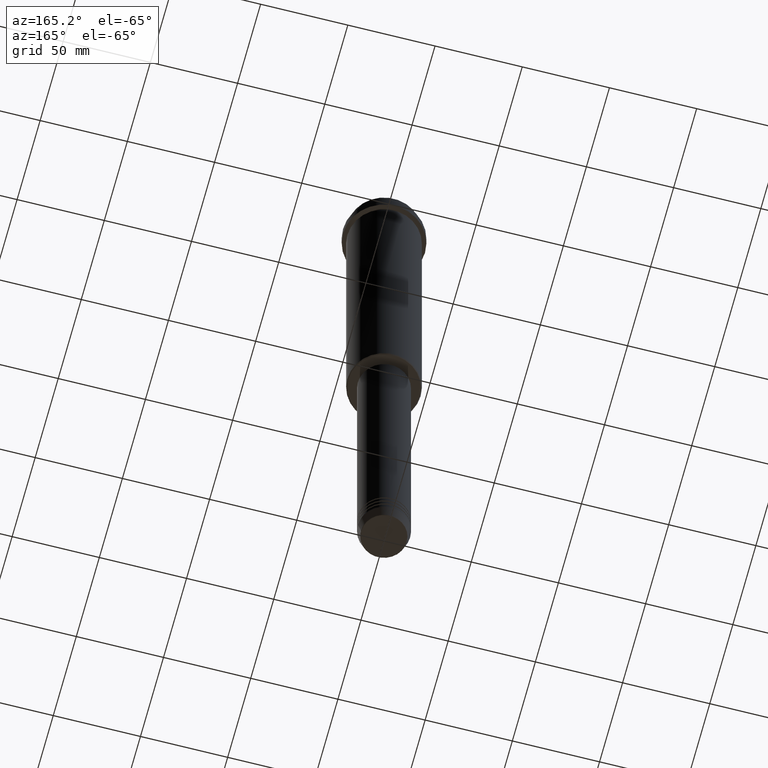
[diagram: clean part render]
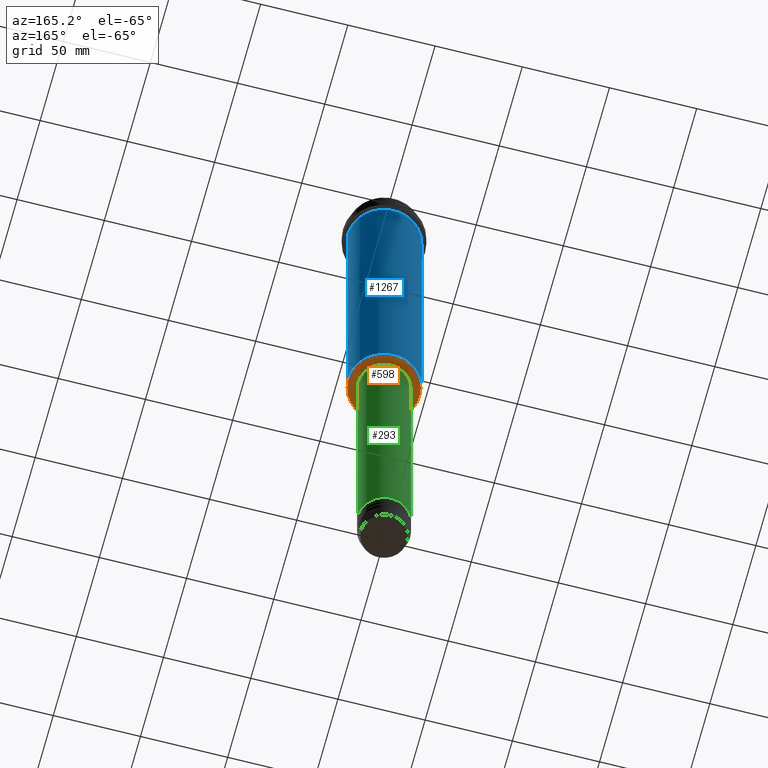
[diagram: same view with three faces highlighted in distinct colors, each labeled with its STEP entity id]
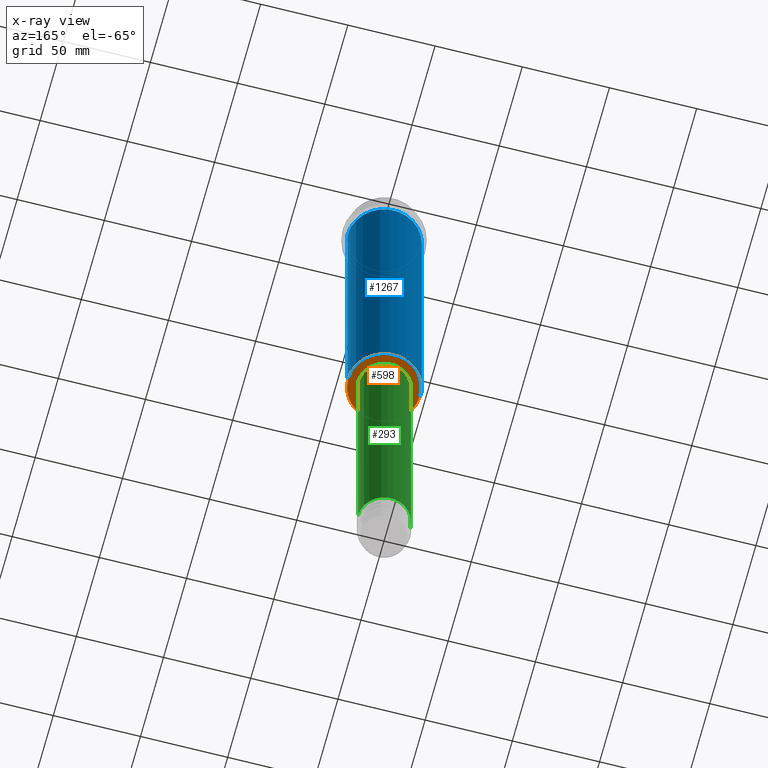
[diagram: x-ray of the same camera — body ghosted, the three highlighted faces saturated]
A machine part, auxiliary view with three faces highlighted in distinct colors.
The next image is the same camera in x-ray (body ghosted, the three faces saturated) — at least one of them is partly hidden behind the body in this view.
Their STEP definitions:

[orange] entity #598 — the highlighted planar face has unit normal (0, 0, -1).
#97 = PLANE ( 'NONE',  #1342 ) ;
#129 = CIRCLE ( 'NONE', #1339, 14.49999999999999822 ) ;
#140 = CARTESIAN_POINT ( 'NONE',  ( 0.000000000000000000, 0.000000000000000000, -205.0000000000000000 ) ) ;
#192 = DIRECTION ( 'NONE',  ( 0.000000000000000000, 0.000000000000000000, -1.000000000000000000 ) ) ;
#296 = CARTESIAN_POINT ( 'NONE',  ( 0.000000000000000000, 0.000000000000000000, -205.0000000000000000 ) ) ;
#304 = CARTESIAN_POINT ( 'NONE',  ( 14.49999999999999822, 0.000000000000000000, -205.0000000000000000 ) ) ;
#359 = CARTESIAN_POINT ( 'NONE',  ( 0.000000000000000000, 0.000000000000000000, -205.0000000000000284 ) ) ;
#360 = VERTEX_POINT ( 'NONE', #984 ) ;
#396 = DIRECTION ( 'NONE',  ( 1.000000000000000000, 0.000000000000000000, 0.000000000000000000 ) ) ;
#447 = DIRECTION ( 'NONE',  ( -1.000000000000000000, 0.000000000000000000, -0.000000000000000000 ) ) ;
#453 = AXIS2_PLACEMENT_3D ( 'NONE', #359, #477, #801 ) ;
#459 = EDGE_CURVE ( 'NONE', #1155, #360, #129, .T. ) ;
#477 = DIRECTION ( 'NONE',  ( 0.000000000000000000, 0.000000000000000000, -1.000000000000000000 ) ) ;
#504 = ORIENTED_EDGE ( 'NONE', *, *, #583, .T. ) ;
#583 = EDGE_CURVE ( 'NONE', #360, #1155, #1320, .T. ) ;
#598 = ADVANCED_FACE ( 'NONE', ( #651, #866 ), #97, .T. ) ;
#630 = DIRECTION ( 'NONE',  ( -1.000000000000000000, 0.000000000000000000, 0.000000000000000000 ) ) ;
#651 = FACE_OUTER_BOUND ( 'NONE', #1401, .T. ) ;
#686 = DIRECTION ( 'NONE',  ( -0.000000000000000000, -0.000000000000000000, 1.000000000000000000 ) ) ;
#696 = AXIS2_PLACEMENT_3D ( 'NONE', #296, #1156, #396 ) ;
#707 = EDGE_CURVE ( 'NONE', #1328, #1333, #1163, .T. ) ;
#739 = EDGE_CURVE ( 'NONE', #1333, #1328, #1113, .T. ) ;
#740 = CARTESIAN_POINT ( 'NONE',  ( 0.000000000000000000, 0.000000000000000000, -205.0000000000000284 ) ) ;
#768 = CARTESIAN_POINT ( 'NONE',  ( 0.000000000000000000, 21.00000000000000000, -205.0000000000000284 ) ) ;
#799 = ORIENTED_EDGE ( 'NONE', *, *, #459, .T. ) ;
#801 = DIRECTION ( 'NONE',  ( -1.000000000000000000, 0.000000000000000000, 0.000000000000000000 ) ) ;
#866 = FACE_BOUND ( 'NONE', #1057, .T. ) ;
#925 = CARTESIAN_POINT ( 'NONE',  ( 20.50000000000001776, 0.000000000000000000, -205.0000000000000284 ) ) ;
#984 = CARTESIAN_POINT ( 'NONE',  ( -14.49999999999999822, 1.775737858763662015E-15, -205.0000000000000000 ) ) ;
#1005 = CARTESIAN_POINT ( 'NONE',  ( -20.50000000000001776, 2.541142108230758663E-15, -205.0000000000000284 ) ) ;
#1057 = EDGE_LOOP ( 'NONE', ( #799, #504 ) ) ;
#1090 = DIRECTION ( 'NONE',  ( 0.000000000000000000, 0.000000000000000000, -1.000000000000000000 ) ) ;
#1113 = CIRCLE ( 'NONE', #453, 20.50000000000001776 ) ;
#1155 = VERTEX_POINT ( 'NONE', #304 ) ;
#1156 = DIRECTION ( 'NONE',  ( -0.000000000000000000, -0.000000000000000000, 1.000000000000000000 ) ) ;
#1163 = CIRCLE ( 'NONE', #1278, 20.50000000000001776 ) ;
#1226 = DIRECTION ( 'NONE',  ( 1.000000000000000000, 0.000000000000000000, 0.000000000000000000 ) ) ;
#1238 = ORIENTED_EDGE ( 'NONE', *, *, #739, .T. ) ;
#1278 = AXIS2_PLACEMENT_3D ( 'NONE', #740, #192, #630 ) ;
#1320 = CIRCLE ( 'NONE', #696, 14.49999999999999822 ) ;
#1328 = VERTEX_POINT ( 'NONE', #1005 ) ;
#1333 = VERTEX_POINT ( 'NONE', #925 ) ;
#1339 = AXIS2_PLACEMENT_3D ( 'NONE', #140, #686, #1226 ) ;
#1342 = AXIS2_PLACEMENT_3D ( 'NONE', #768, #1090, #447 ) ;
#1379 = ORIENTED_EDGE ( 'NONE', *, *, #707, .T. ) ;
#1401 = EDGE_LOOP ( 'NONE', ( #1238, #1379 ) ) ;

[blue] entity #1267 — the highlighted cylindrical surface (partial cylindrical patch) has radius 21 mm, axis along (-0, -0, 1).
#3 = ORIENTED_EDGE ( 'NONE', *, *, #1089, .T. ) ;
#89 = VECTOR ( 'NONE', #969, 1000.000000000000000 ) ;
#96 = VERTEX_POINT ( 'NONE', #601 ) ;
#106 = LINE ( 'NONE', #773, #1093 ) ;
#115 = DIRECTION ( 'NONE',  ( 1.000000000000000000, 0.000000000000000000, 0.000000000000000000 ) ) ;
#132 = ORIENTED_EDGE ( 'NONE', *, *, #1198, .F. ) ;
#135 = CARTESIAN_POINT ( 'NONE',  ( 20.99999999999999645, 0.000000000000000000, -16.00000000000000355 ) ) ;
#199 = AXIS2_PLACEMENT_3D ( 'NONE', #557, #985, #115 ) ;
#210 = DIRECTION ( 'NONE',  ( -0.000000000000000000, -0.000000000000000000, 1.000000000000000000 ) ) ;
#279 = DIRECTION ( 'NONE',  ( -1.000000000000000000, 0.000000000000000000, 0.000000000000000000 ) ) ;
#291 = CIRCLE ( 'NONE', #199, 20.99999999999999645 ) ;
#321 = CARTESIAN_POINT ( 'NONE',  ( -20.99999999999999645, 2.571758278209441267E-15, 0.000000000000000000 ) ) ;
#336 = CIRCLE ( 'NONE', #977, 20.99999999999999645 ) ;
#342 = ORIENTED_EDGE ( 'NONE', *, *, #1180, .T. ) ;
#356 = AXIS2_PLACEMENT_3D ( 'NONE', #1327, #639, #1075 ) ;
#377 = CARTESIAN_POINT ( 'NONE',  ( 20.99999999999999645, 0.000000000000000000, -204.5000000000000284 ) ) ;
#392 = CARTESIAN_POINT ( 'NONE',  ( 0.000000000000000000, 0.000000000000000000, -204.5000000000000284 ) ) ;
#502 = VERTEX_POINT ( 'NONE', #377 ) ;
#557 = CARTESIAN_POINT ( 'NONE',  ( 0.000000000000000000, 0.000000000000000000, -16.00000000000000355 ) ) ;
#601 = CARTESIAN_POINT ( 'NONE',  ( -20.99999999999999645, 2.571758278209441267E-15, -204.5000000000000284 ) ) ;
#617 = EDGE_LOOP ( 'NONE', ( #3, #342, #132, #1101 ) ) ;
#639 = DIRECTION ( 'NONE',  ( -0.000000000000000000, -0.000000000000000000, 1.000000000000000000 ) ) ;
#646 = FACE_OUTER_BOUND ( 'NONE', #617, .T. ) ;
#745 = VERTEX_POINT ( 'NONE', #917 ) ;
#773 = CARTESIAN_POINT ( 'NONE',  ( 20.99999999999999645, 0.000000000000000000, 0.000000000000000000 ) ) ;
#917 = CARTESIAN_POINT ( 'NONE',  ( -20.99999999999999645, 2.571758278209441267E-15, -16.00000000000000355 ) ) ;
#969 = DIRECTION ( 'NONE',  ( -0.000000000000000000, -0.000000000000000000, 1.000000000000000000 ) ) ;
#977 = AXIS2_PLACEMENT_3D ( 'NONE', #392, #1290, #279 ) ;
#985 = DIRECTION ( 'NONE',  ( -0.000000000000000000, -0.000000000000000000, 1.000000000000000000 ) ) ;
#990 = LINE ( 'NONE', #321, #89 ) ;
#1075 = DIRECTION ( 'NONE',  ( 1.000000000000000000, 0.000000000000000000, 0.000000000000000000 ) ) ;
#1089 = EDGE_CURVE ( 'NONE', #502, #96, #336, .T. ) ;
#1093 = VECTOR ( 'NONE', #210, 1000.000000000000000 ) ;
#1101 = ORIENTED_EDGE ( 'NONE', *, *, #1241, .F. ) ;
#1106 = CYLINDRICAL_SURFACE ( 'NONE', #356, 20.99999999999999645 ) ;
#1180 = EDGE_CURVE ( 'NONE', #96, #745, #990, .T. ) ;
#1198 = EDGE_CURVE ( 'NONE', #1393, #745, #291, .T. ) ;
#1241 = EDGE_CURVE ( 'NONE', #502, #1393, #106, .T. ) ;
#1267 = ADVANCED_FACE ( 'NONE', ( #646 ), #1106, .T. ) ;
#1290 = DIRECTION ( 'NONE',  ( -0.000000000000000000, -0.000000000000000000, 1.000000000000000000 ) ) ;
#1327 = CARTESIAN_POINT ( 'NONE',  ( 0.000000000000000000, 0.000000000000000000, 0.000000000000000000 ) ) ;
#1393 = VERTEX_POINT ( 'NONE', #135 ) ;

[green] entity #293 — the highlighted cylindrical surface (edge-blend (fillet) strip) has radius 15 mm, axis along (-0, -0, 1).
#10 = DIRECTION ( 'NONE',  ( -0.000000000000000000, -0.000000000000000000, 1.000000000000000000 ) ) ;
#24 = ORIENTED_EDGE ( 'NONE', *, *, #941, .T. ) ;
#79 = CARTESIAN_POINT ( 'NONE',  ( 0.000000000000000000, 0.000000000000000000, -205.9999999999999432 ) ) ;
#105 = CARTESIAN_POINT ( 'NONE',  ( -15.00000000000000000, 1.836970198721029589E-15, -205.9999999999999432 ) ) ;
#223 = CYLINDRICAL_SURFACE ( 'NONE', #1276, 15.00000000000000000 ) ;
#262 = DIRECTION ( 'NONE',  ( -0.000000000000000000, -0.000000000000000000, 1.000000000000000000 ) ) ;
#293 = ADVANCED_FACE ( 'NONE', ( #536 ), #223, .T. ) ;
#317 = VERTEX_POINT ( 'NONE', #105 ) ;
#395 = ORIENTED_EDGE ( 'NONE', *, *, #876, .T. ) ;
#425 = DIRECTION ( 'NONE',  ( -0.000000000000000000, -0.000000000000000000, 1.000000000000000000 ) ) ;
#496 = DIRECTION ( 'NONE',  ( 1.000000000000000000, 0.000000000000000000, 0.000000000000000000 ) ) ;
#515 = DIRECTION ( 'NONE',  ( 1.000000000000000000, 0.000000000000000000, 0.000000000000000000 ) ) ;
#533 = CARTESIAN_POINT ( 'NONE',  ( -15.00000000000000000, 1.836970198721029589E-15, 0.000000000000000000 ) ) ;
#536 = FACE_OUTER_BOUND ( 'NONE', #1168, .T. ) ;
#539 = LINE ( 'NONE', #533, #550 ) ;
#550 = VECTOR ( 'NONE', #960, 1000.000000000000000 ) ;
#560 = CARTESIAN_POINT ( 'NONE',  ( 15.00000000000000000, 0.000000000000000000, 0.000000000000000000 ) ) ;
#587 = CIRCLE ( 'NONE', #954, 15.00000000000000000 ) ;
#600 = ORIENTED_EDGE ( 'NONE', *, *, #1130, .F. ) ;
#607 = VECTOR ( 'NONE', #10, 1000.000000000000000 ) ;
#638 = CARTESIAN_POINT ( 'NONE',  ( 0.000000000000000000, 0.000000000000000000, 0.000000000000000000 ) ) ;
#682 = EDGE_CURVE ( 'NONE', #886, #1013, #1096, .T. ) ;
#697 = CARTESIAN_POINT ( 'NONE',  ( 15.00000000000000000, 0.000000000000000000, -205.9999999999999432 ) ) ;
#710 = VERTEX_POINT ( 'NONE', #1067 ) ;
#876 = EDGE_CURVE ( 'NONE', #886, #710, #587, .T. ) ;
#883 = CIRCLE ( 'NONE', #1165, 15.00000000000000000 ) ;
#886 = VERTEX_POINT ( 'NONE', #1281 ) ;
#941 = EDGE_CURVE ( 'NONE', #710, #317, #539, .T. ) ;
#954 = AXIS2_PLACEMENT_3D ( 'NONE', #1050, #262, #496 ) ;
#960 = DIRECTION ( 'NONE',  ( -0.000000000000000000, -0.000000000000000000, 1.000000000000000000 ) ) ;
#1013 = VERTEX_POINT ( 'NONE', #697 ) ;
#1036 = ORIENTED_EDGE ( 'NONE', *, *, #682, .F. ) ;
#1040 = DIRECTION ( 'NONE',  ( -0.000000000000000000, -0.000000000000000000, 1.000000000000000000 ) ) ;
#1050 = CARTESIAN_POINT ( 'NONE',  ( 0.000000000000000000, 0.000000000000000000, -380.9999999999998863 ) ) ;
#1067 = CARTESIAN_POINT ( 'NONE',  ( -15.00000000000000000, 1.836970198721029589E-15, -380.9999999999998863 ) ) ;
#1094 = DIRECTION ( 'NONE',  ( 1.000000000000000000, 0.000000000000000000, 0.000000000000000000 ) ) ;
#1096 = LINE ( 'NONE', #560, #607 ) ;
#1130 = EDGE_CURVE ( 'NONE', #1013, #317, #883, .T. ) ;
#1165 = AXIS2_PLACEMENT_3D ( 'NONE', #79, #1040, #515 ) ;
#1168 = EDGE_LOOP ( 'NONE', ( #395, #24, #600, #1036 ) ) ;
#1276 = AXIS2_PLACEMENT_3D ( 'NONE', #638, #425, #1094 ) ;
#1281 = CARTESIAN_POINT ( 'NONE',  ( 15.00000000000000000, 0.000000000000000000, -380.9999999999998863 ) ) ;